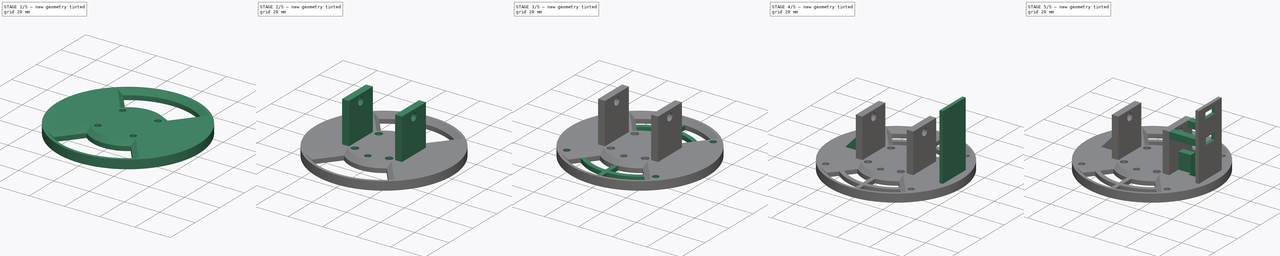
[diagram: build sequence overview — one tinted view per stage of 5, left to right]
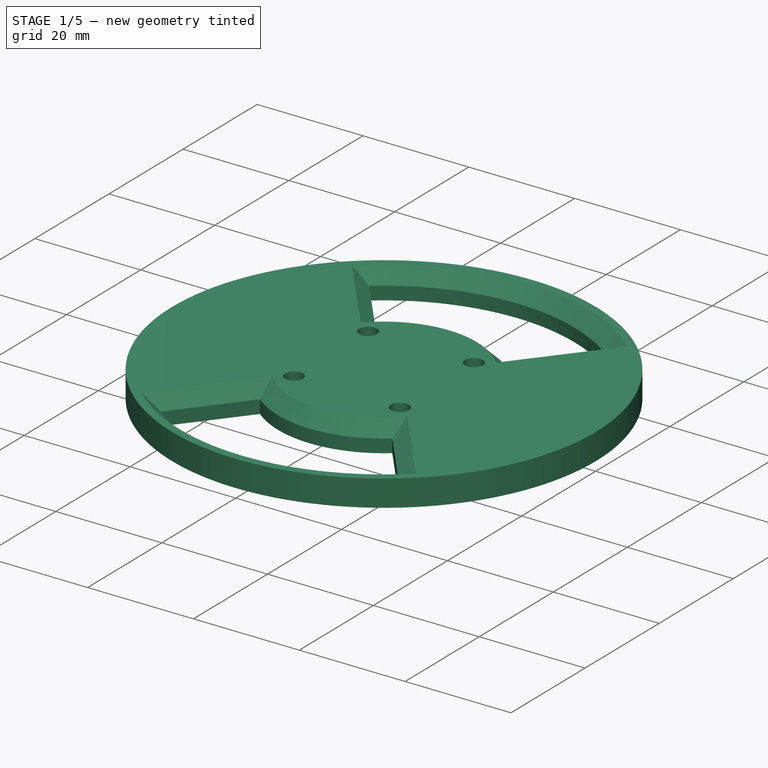
[diagram: stage 1 of 5 — iso view after this stage's code; geometry added in this stage tinted green]
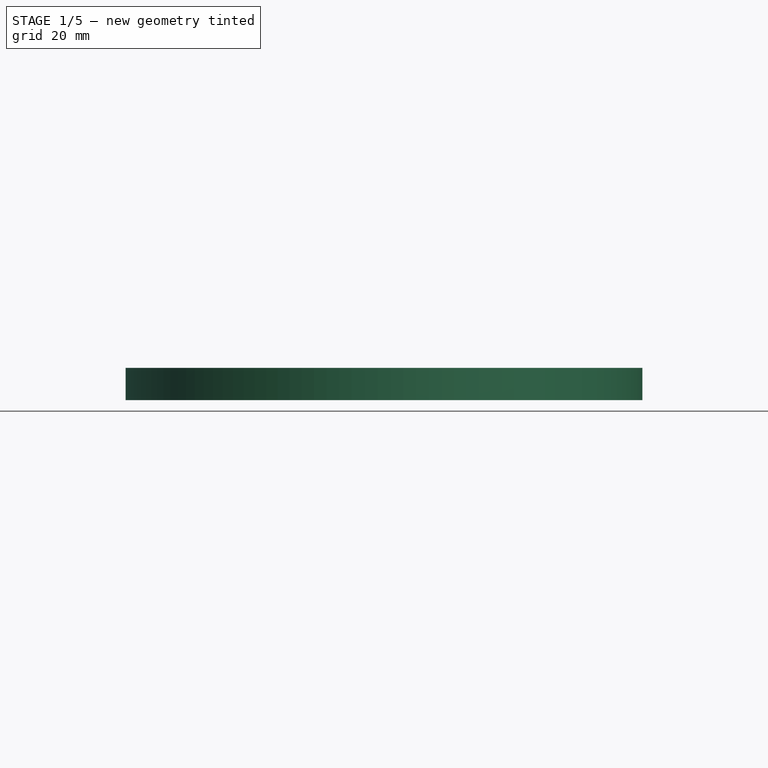
[diagram: stage 1 of 5 — front view after this stage's code; geometry added in this stage tinted green]
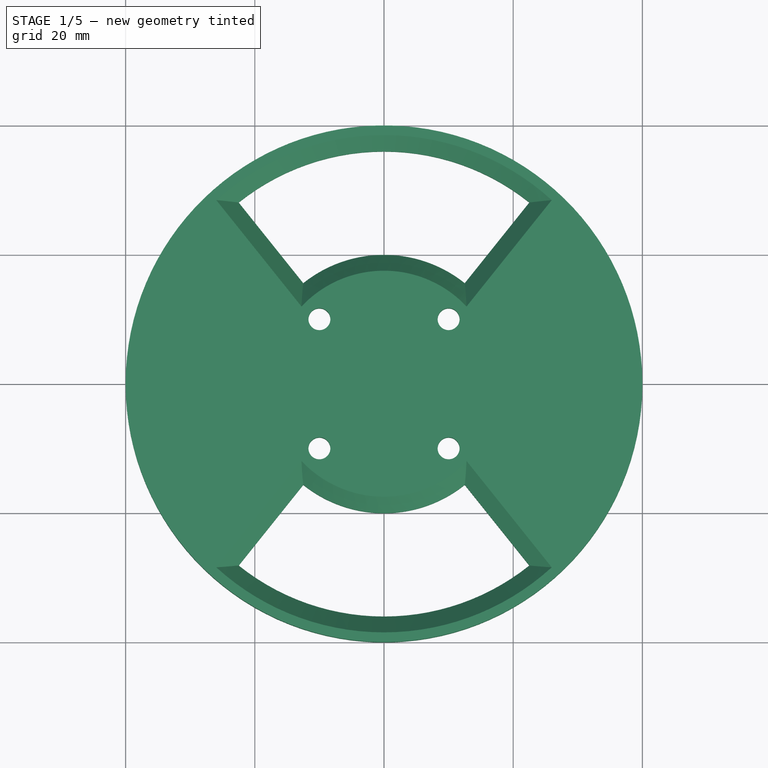
[diagram: stage 1 of 5 — top view after this stage's code; geometry added in this stage tinted green]
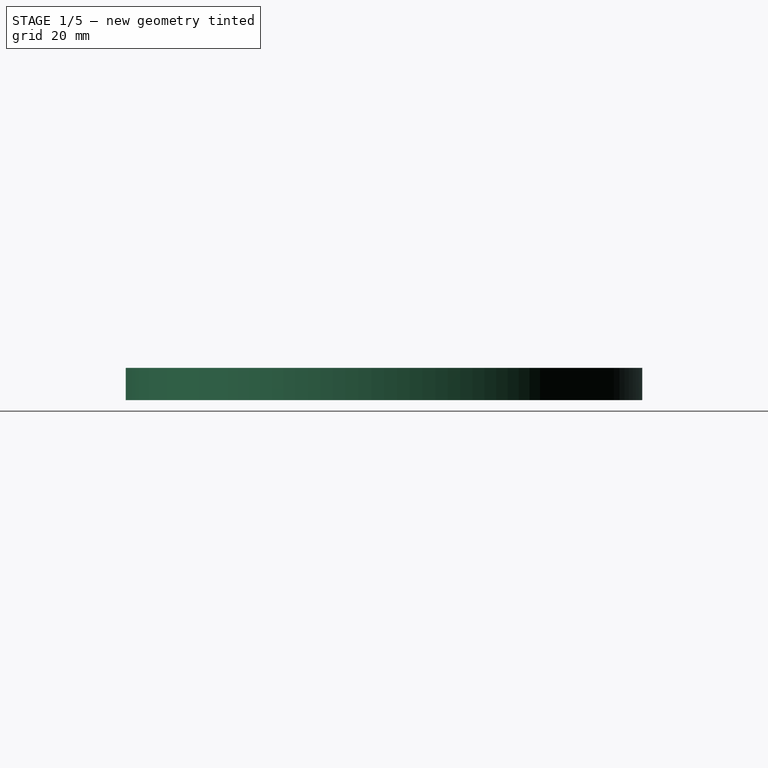
[diagram: stage 1 of 5 — right view after this stage's code; geometry added in this stage tinted green]
FCSTD DOCUMENT  (FreeCAD 0.16RUnknown)
Label: bottom
License: All rights reserved
LicenseURL: http://en.wikipedia.org/wiki/All_rights_reserved
objects: Sketcher::SketchObject×17, PartDesign::Pocket×10, PartDesign::Pad×7, PartDesign::Mirrored×3, PartDesign::Chamfer×1
note: 55 computed .brp shape members not serialized (recipe doc carries the construction recipe); baked Part::Feature solids carry a one-line shape summary decoded from their .brp

FEATURE [Sketcher::SketchObject] Sketch
  sketch-geometry (9):
    g0: Circle CenterX=0 CenterY=0 CenterZ=0 NormalX=0 NormalY=0 NormalZ=1 Radius=40
    g1: Circle CenterX=10 CenterY=10 CenterZ=0 NormalX=0 NormalY=0 NormalZ=1 Radius=1.7
    g2: Circle CenterX=-10 CenterY=10 CenterZ=0 NormalX=0 NormalY=0 NormalZ=1 Radius=1.7
    g3: Circle CenterX=-10 CenterY=-10 CenterZ=0 NormalX=0 NormalY=0 NormalZ=1 Radius=1.7
    g4: Circle CenterX=10 CenterY=-10 CenterZ=0 NormalX=0 NormalY=0 NormalZ=1 Radius=1.7
    g5: LineSegment [constr] StartX=-10 StartY=10 StartZ=0 EndX=10 EndY=10 EndZ=0
    g6: LineSegment [constr] StartX=10 StartY=10 StartZ=0 EndX=10 EndY=-10 EndZ=0
    g7: LineSegment [constr] StartX=10 StartY=-10 StartZ=0 EndX=-10 EndY=-10 EndZ=0
    g8: LineSegment [constr] StartX=-10 StartY=-10 StartZ=0 EndX=-10 EndY=10 EndZ=0
  constraints (22):
    c: Coincident(g0,g-1)
    c: Coincident(g5,g2)
    c: Coincident(g5,g1)
    c: Coincident(g5,g6)
    c: Coincident(g6,g4)
    c: Vertical(g6)
    c: Coincident(g6,g7)
    c: Coincident(g7,g8)
    c: Coincident(g8,g5)
    c: Coincident(g7,g3)
    c: Horizontal(g5)
    c: Horizontal(g7)
    c: Vertical(g8)
    c: DistanceX(g5,g5) = 20
    c: DistanceY(g6,g6) = 20
    c: Equal(g1,g4)
    c: Equal(g4,g3)
    c: Equal(g3,g2)
    c: Radius(g1) = 1.7
    c: Symmetric(g1,g2,g-2)
    c: Symmetric(g2,g3,g-1)
    c: Radius(g0) = 40
FEATURE [PartDesign::Pad] Pad
  Length = 5
  Length2 = 100
  Sketch = -> Sketch
  Type = 0
FEATURE [Sketcher::SketchObject] Sketch001
  Placement = pos=(0,0,0) rot=(1,0,0;3.14159rad)
  Support = -> Pad [Face6]
  sketch-geometry (4):
    g0: ArcOfCircle CenterX=0 CenterY=0 CenterZ=0 NormalX=0 NormalY=0 NormalZ=1 Radius=36 StartAngle=0.895665 EndAngle=2.24593
    g1: ArcOfCircle CenterX=0 CenterY=0 CenterZ=0 NormalX=0 NormalY=0 NormalZ=1 Radius=20 StartAngle=0.895665 EndAngle=2.24593
    g2: LineSegment StartX=-22.5 StartY=28.1025 StartZ=0 EndX=-12.5 EndY=15.6125 EndZ=0
    g3: LineSegment StartX=22.5 StartY=28.1025 StartZ=0 EndX=12.5 EndY=15.6125 EndZ=0
  constraints (12):
    c: Coincident(g0,g-1)
    c: Coincident(g1,g-1)
    c: Coincident(g2,g0)
    c: Coincident(g3,g0)
    c: Coincident(g3,g1)
    c: Perpendicular(g0,g3)
    c: Perpendicular(g0,g2)
    c: Coincident(g2,g1)
    c: Symmetric(g1,g1,g-2)
    c: Distance(g3) = 16
    c: Distance(g-1,g0) = 36
    c: DistanceX(g1,g1) = 25
FEATURE [PartDesign::Pocket] Pocket
  Length = 5
  Sketch = -> Sketch001
  Type = 1
FEATURE [PartDesign::Mirrored] Mirrored
  MirrorPlane = -> Sketch001 [H_Axis]
  Originals = -> [Pocket]
FEATURE [PartDesign::Chamfer] Chamfer
  Base = -> Mirrored [Edge21,Edge18,Edge19,Edge20,Edge22,Edge25,Edge23,Edge24]
  Size = 2.5
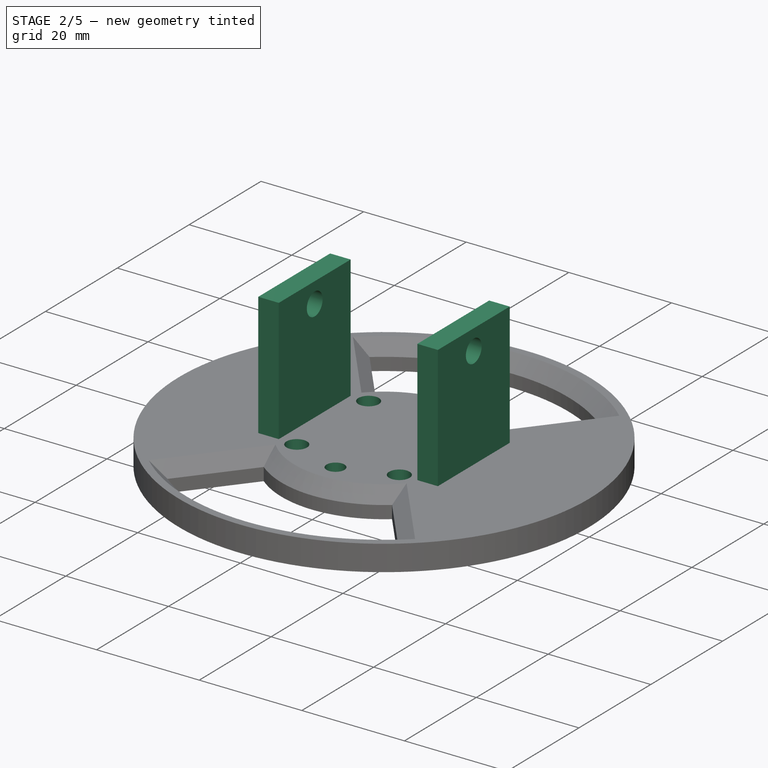
[diagram: stage 2 of 5 — iso view after this stage's code; geometry added in this stage tinted green]
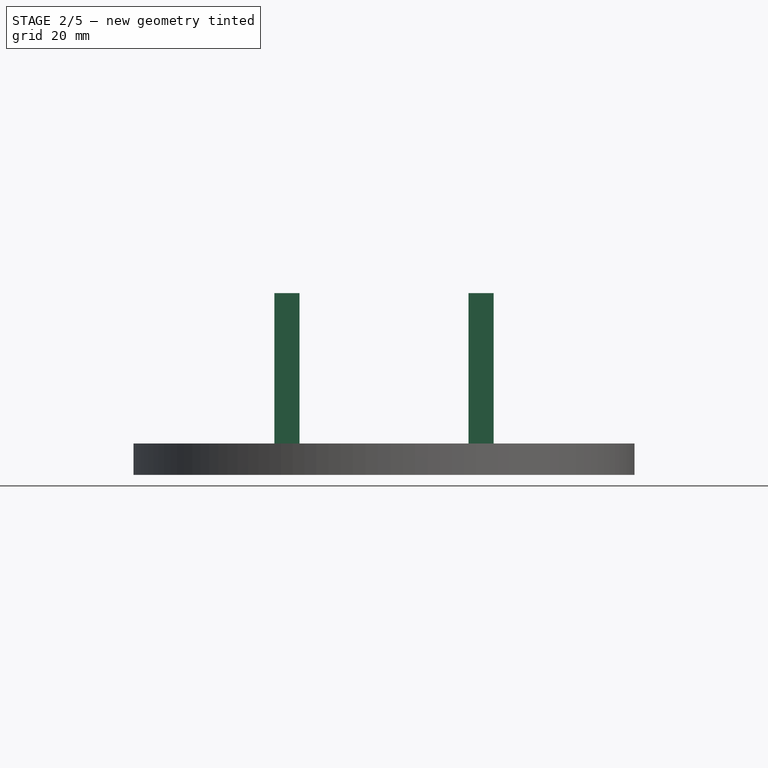
[diagram: stage 2 of 5 — front view after this stage's code; geometry added in this stage tinted green]
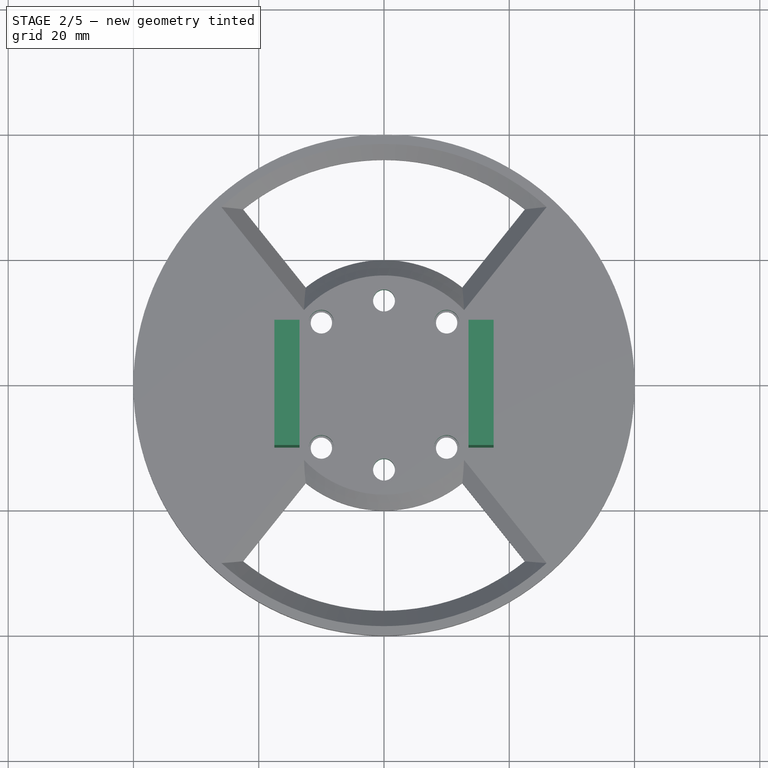
[diagram: stage 2 of 5 — top view after this stage's code; geometry added in this stage tinted green]
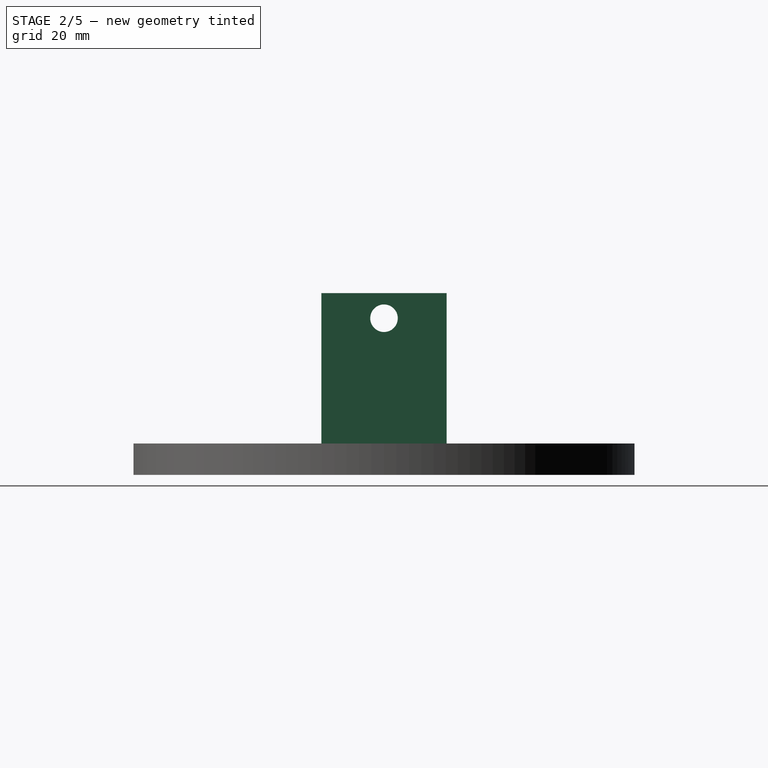
[diagram: stage 2 of 5 — right view after this stage's code; geometry added in this stage tinted green]
FEATURE [Sketcher::SketchObject] Sketch002
  Placement = pos=(0,0,5) rot=(0,0,1;0rad)
  Support = -> Chamfer [Face1]
  sketch-geometry (8):
    g0: LineSegment StartX=13.5 StartY=10 StartZ=0 EndX=17.5 EndY=10 EndZ=0
    g1: LineSegment StartX=17.5 StartY=10 StartZ=0 EndX=17.5 EndY=-10 EndZ=0
    g2: LineSegment StartX=17.5 StartY=-10 StartZ=0 EndX=13.5 EndY=-10 EndZ=0
    g3: LineSegment StartX=13.5 StartY=-10 StartZ=0 EndX=13.5 EndY=10 EndZ=0
    g4: LineSegment StartX=-17.5 StartY=10 StartZ=0 EndX=-13.5 EndY=10 EndZ=0
    g5: LineSegment StartX=-13.5 StartY=10 StartZ=0 EndX=-13.5 EndY=-10 EndZ=0
    g6: LineSegment StartX=-13.5 StartY=-10 StartZ=0 EndX=-17.5 EndY=-10 EndZ=0
    g7: LineSegment StartX=-17.5 StartY=-10 StartZ=0 EndX=-17.5 EndY=10 EndZ=0
  constraints (23):
    c: Coincident(g0,g1)
    c: Coincident(g1,g2)
    c: Coincident(g2,g3)
    c: Coincident(g3,g0)
    c: Horizontal(g0)
    c: Horizontal(g2)
    c: Vertical(g1)
    c: Vertical(g3)
    c: Coincident(g4,g5)
    c: Coincident(g5,g6)
    c: Coincident(g6,g7)
    c: Coincident(g7,g4)
    c: Horizontal(g4)
    c: Horizontal(g6)
    c: Vertical(g5)
    c: Vertical(g7)
    c: DistanceX(g4,g0) = 27
    c: DistanceX(g2,g2) = 4
    c: Symmetric(g0,g4,g-2)
    c: Equal(g6,g2)
    c: Equal(g5,g3)
    c: DistanceY(g7,g7) = 20
    c: Symmetric(g4,g5,g-1)
FEATURE [PartDesign::Pad] Pad001
  Length = 24
  Length2 = 100
  Sketch = -> Sketch002
  Type = 0
FEATURE [Sketcher::SketchObject] Sketch003
  ExternalGeometry = -> [Pad001]
  Placement = pos=(-17.5,0,0) rot=(0.57735,-0.57735,-0.57735;2.0944rad)
  Support = -> Pad001 [Face22]
  sketch-geometry (1):
    g0: Circle CenterX=0 CenterY=25 CenterZ=0 NormalX=0 NormalY=0 NormalZ=1 Radius=2.2
  constraints (3):
    c: PointOnObject(g0,g-2)
    c: Radius(g0) = 2.2
    c: DistanceY(g0,g-3) = 4
FEATURE [PartDesign::Pocket] Pocket001
  Length = 5
  Sketch = -> Sketch003
  Type = 1
FEATURE [Sketcher::SketchObject] Sketch004
  Placement = pos=(0,0,0) rot=(1,0,0;3.14159rad)
  Support = -> Pocket001 [Face2]
  sketch-geometry (2):
    g0: Circle CenterX=0 CenterY=13.5 CenterZ=0 NormalX=0 NormalY=0 NormalZ=1 Radius=1.75
    g1: Circle CenterX=0 CenterY=-13.5 CenterZ=0 NormalX=0 NormalY=0 NormalZ=1 Radius=1.75
  constraints (6):
    c: PointOnObject(g0,g-2)
    c: PointOnObject(g1,g-2)
    c: DistanceY(g1,g0) = 27
    c: Equal(g1,g0)
    c: Radius(g0) = 1.75
    c: Symmetric(g1,g0,g-1)
FEATURE [PartDesign::Pocket] Pocket002
  Length = 5
  Sketch = -> Sketch004
  Type = 1
FEATURE [Sketcher::SketchObject] Sketch005
  ExternalGeometry = -> [Pocket002]
  Placement = pos=(0,0,5) rot=(0,0,1;0rad)
  Support = -> Pocket002 [Face3]
  sketch-geometry (4):
    g0: Circle CenterX=-10 CenterY=10 CenterZ=0 NormalX=0 NormalY=0 NormalZ=1 Radius=2
    g1: Circle CenterX=10 CenterY=10 CenterZ=0 NormalX=0 NormalY=0 NormalZ=1 Radius=2
    g2: Circle CenterX=10 CenterY=-10 CenterZ=0 NormalX=0 NormalY=0 NormalZ=1 Radius=2
    g3: Circle CenterX=-10 CenterY=-10 CenterZ=0 NormalX=0 NormalY=0 NormalZ=1 Radius=2
  constraints (8):
    c: Coincident(g0,g-4)
    c: Coincident(g1,g-3)
    c: Coincident(g2,g-6)
    c: Coincident(g3,g-5)
    c: Equal(g3,g2)
    c: Equal(g2,g1)
    c: Equal(g1,g0)
    c: Radius(g1) = 2
FEATURE [PartDesign::Pocket] Pocket003
  Length = 4
  Sketch = -> Sketch005
  Type = 0
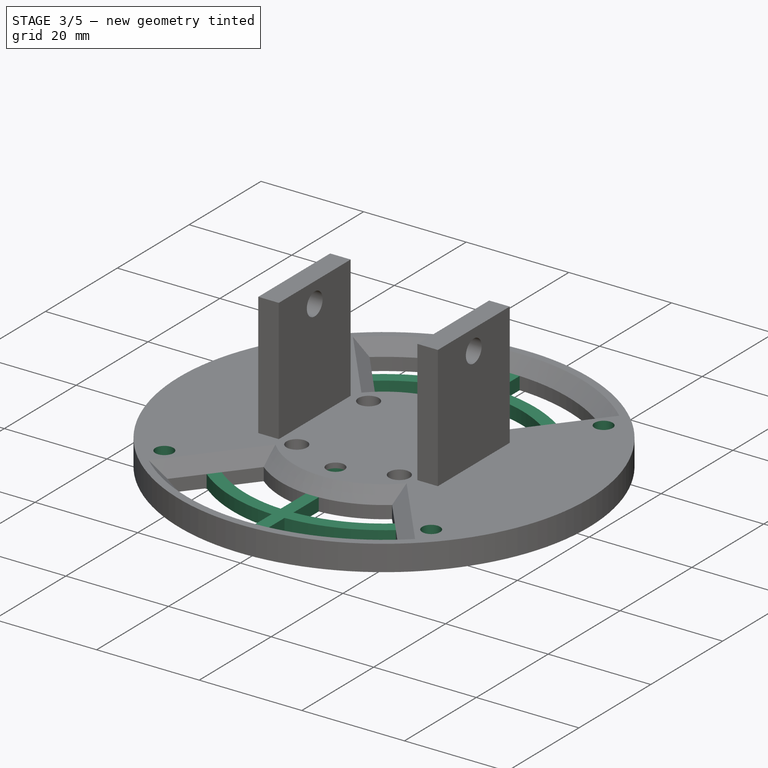
[diagram: stage 3 of 5 — iso view after this stage's code; geometry added in this stage tinted green]
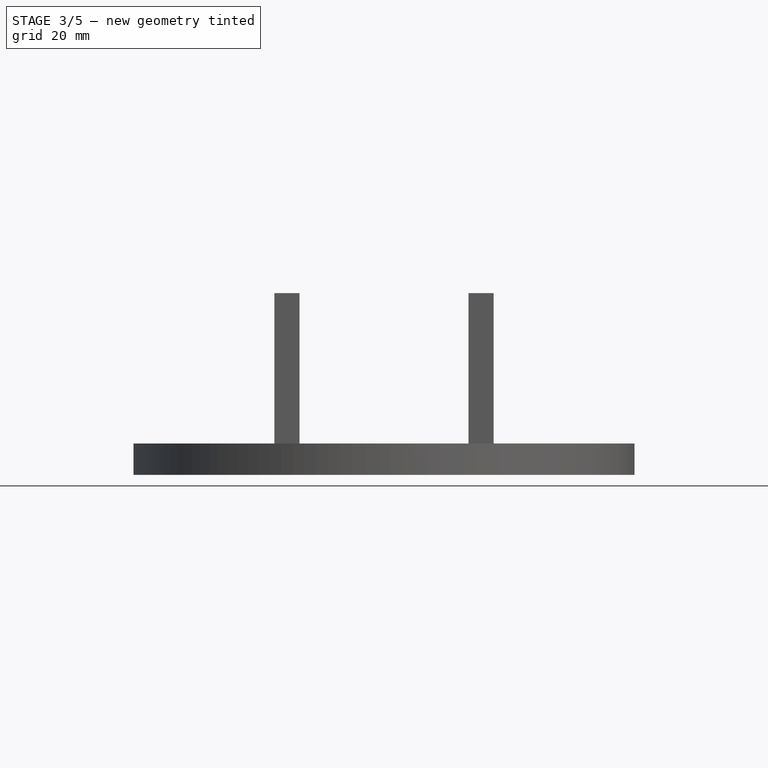
[diagram: stage 3 of 5 — front view after this stage's code; geometry added in this stage tinted green]
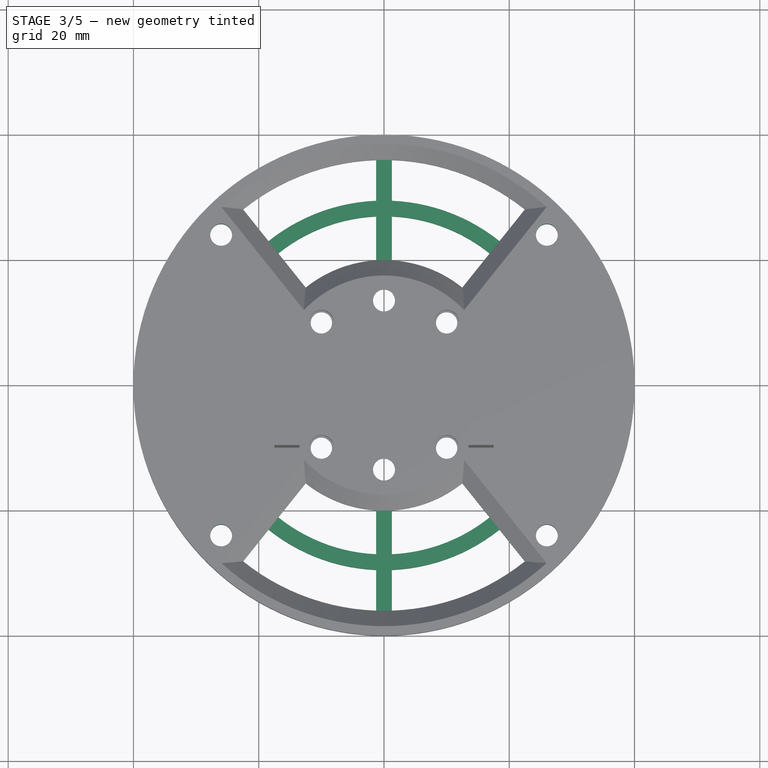
[diagram: stage 3 of 5 — top view after this stage's code; geometry added in this stage tinted green]
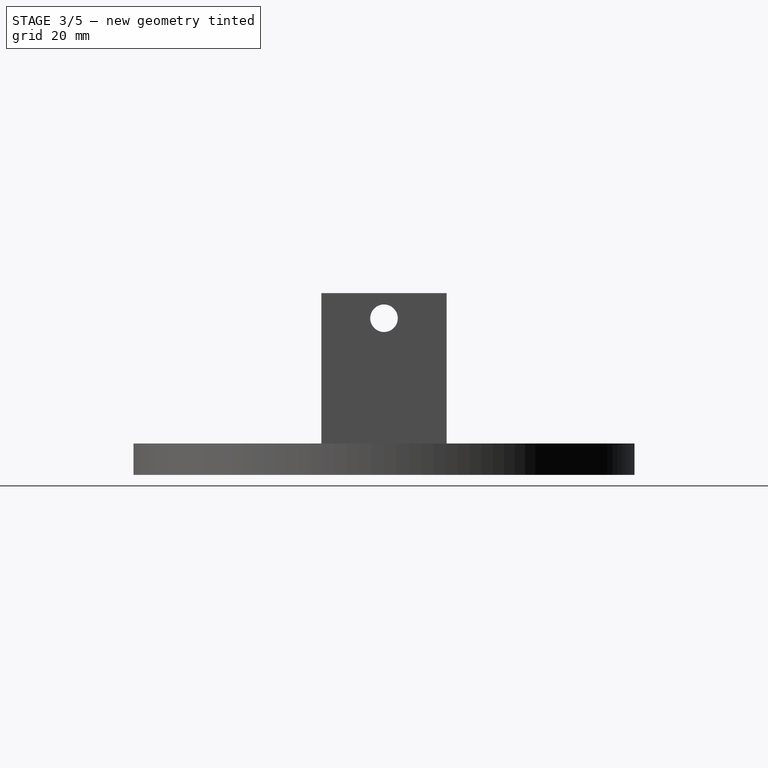
[diagram: stage 3 of 5 — right view after this stage's code; geometry added in this stage tinted green]
FEATURE [Sketcher::SketchObject] Sketch006
  ExternalGeometry = -> [Pocket003]
  Placement = pos=(0,0,0) rot=(1,0,0;3.14159rad)
  Support = -> Pocket003 [Face2]
  sketch-geometry (2):
    g0: Circle CenterX=0 CenterY=13.5 CenterZ=0 NormalX=0 NormalY=0 NormalZ=1 Radius=2
    g1: Circle CenterX=0 CenterY=-13.5 CenterZ=0 NormalX=0 NormalY=0 NormalZ=1 Radius=2
  constraints (4):
    c: Coincident(g0,g-3)
    c: Coincident(g1,g-4)
    c: Equal(g1,g0)
    c: Radius(g0) = 2
FEATURE [PartDesign::Pocket] Pocket004
  Length = 4
  Sketch = -> Sketch006
  Type = 0
FEATURE [Sketcher::SketchObject] Sketch007
  ExternalGeometry = -> [Pocket004]
  Placement = pos=(0,0,0) rot=(1,0,0;3.14159rad)
  Support = -> Pocket004 [Face2]
  sketch-geometry (12):
    g0: ArcOfCircle CenterX=0 CenterY=0 CenterZ=0 NormalX=0 NormalY=0 NormalZ=1 Radius=27 StartAngle=0.895665 EndAngle=1.52448
    g1: ArcOfCircle CenterX=0 CenterY=0 CenterZ=0 NormalX=0 NormalY=0 NormalZ=1 Radius=29.5 StartAngle=0.895665 EndAngle=1.52841
    g2: LineSegment StartX=-18.4375 StartY=23.0284 StartZ=0 EndX=-16.875 EndY=21.0769 EndZ=0
    g3: LineSegment StartX=18.4375 StartY=23.0284 StartZ=0 EndX=16.875 EndY=21.0769 EndZ=0
    g4: ArcOfCircle CenterX=0 CenterY=0 CenterZ=0 NormalX=0 NormalY=0 NormalZ=1 Radius=36 StartAngle=1.53607 EndAngle=1.60553
    g5: LineSegment StartX=-1.25 StartY=35.9783 StartZ=0 EndX=-1.25 EndY=29.4735 EndZ=0
    g6: LineSegment StartX=1.25 StartY=35.9783 StartZ=0 EndX=1.25 EndY=29.4735 EndZ=0
    g7: LineSegment StartX=-1.25 StartY=19.9609 StartZ=0 EndX=1.25 EndY=19.9609 EndZ=0
    g8: ArcOfCircle CenterX=0 CenterY=0 CenterZ=0 NormalX=0 NormalY=0 NormalZ=1 Radius=29.5 StartAngle=1.61318 EndAngle=2.24593
    g9: LineSegment StartX=-1.25 StartY=26.971 StartZ=0 EndX=-1.25 EndY=19.9609 EndZ=0
    g10: LineSegment StartX=1.25 StartY=26.971 StartZ=0 EndX=1.25 EndY=19.9609 EndZ=0
    g11: ArcOfCircle CenterX=0 CenterY=0 CenterZ=0 NormalX=0 NormalY=0 NormalZ=1 Radius=27 StartAngle=1.61711 EndAngle=2.24593
  constraints (34):
    c: Coincident(g0,g-1)
    c: PointOnObject(g11,g-6)
    c: PointOnObject(g0,g-5)
    c: Coincident(g1,g-1)
    c: PointOnObject(g8,g-6)
    c: PointOnObject(g1,g-5)
    c: Coincident(g2,g8)
    c: Coincident(g2,g11)
    c: Coincident(g3,g1)
    c: Coincident(g3,g0)
    c: Coincident(g4,g-1)
    c: PointOnObject(g4,g-3)
    c: Coincident(g5,g4)
    c: PointOnObject(g9,g-4)
    c: Coincident(g6,g4)
    c: PointOnObject(g10,g-4)
    c: Vertical(g6)
    c: Vertical(g5)
    c: Symmetric(g4,g4,g-2)
    c: DistanceX(g9,g10) = 2.5
    c: Coincident(g7,g9)
    c: Coincident(g7,g10)
    c: Distance(g0,g1) = 2.5
    c: Distance(g1,g-5) = 6.5
    c: Equal(g1,g8)
    c: Coincident(g1,g8)
    c: Coincident(g5,g8)
    c: Tangent(g5,g9)
    c: Coincident(g6,g1)
    c: Tangent(g6,g10)
    c: Equal(g0,g11)
    c: Coincident(g0,g10)
    c: Coincident(g11,g9)
    c: Coincident(g0,g11)
FEATURE [PartDesign::Pad] Pad002
  Length = 2.5
  Length2 = 100
  Reversed = true
  Sketch = -> Sketch007
  Type = 0
FEATURE [PartDesign::Mirrored] Mirrored001
  MirrorPlane = -> Sketch007 [H_Axis]
  Originals = -> [Pad002]
FEATURE [Sketcher::SketchObject] Sketch008
  Placement = pos=(0,0,0) rot=(1,0,0;3.14159rad)
  Support = -> Mirrored001 [Face2]
  sketch-geometry (3):
    g0: Circle CenterX=26 CenterY=24 CenterZ=0 NormalX=0 NormalY=0 NormalZ=1 Radius=1.75
    g1: Circle CenterX=26 CenterY=-24 CenterZ=0 NormalX=0 NormalY=0 NormalZ=1 Radius=1.75
    g2: LineSegment [constr] StartX=26 StartY=24 StartZ=0 EndX=26 EndY=-24 EndZ=0
  constraints (8):
    c: Symmetric(g0,g1,g-1)
    c: Coincident(g2,g1)
    c: Vertical(g2)
    c: Equal(g1,g0)
    c: Radius(g0) = 1.75
    c: Coincident(g2,g0)
    c: Distance(g-1,g2) = 26
    c: Distance(g2) = 48
FEATURE [PartDesign::Pocket] Pocket005
  Length = 5
  Sketch = -> Sketch008
  Type = 1
FEATURE [PartDesign::Mirrored] Mirrored002
  MirrorPlane = -> Sketch008 [V_Axis]
  Originals = -> [Pocket005]
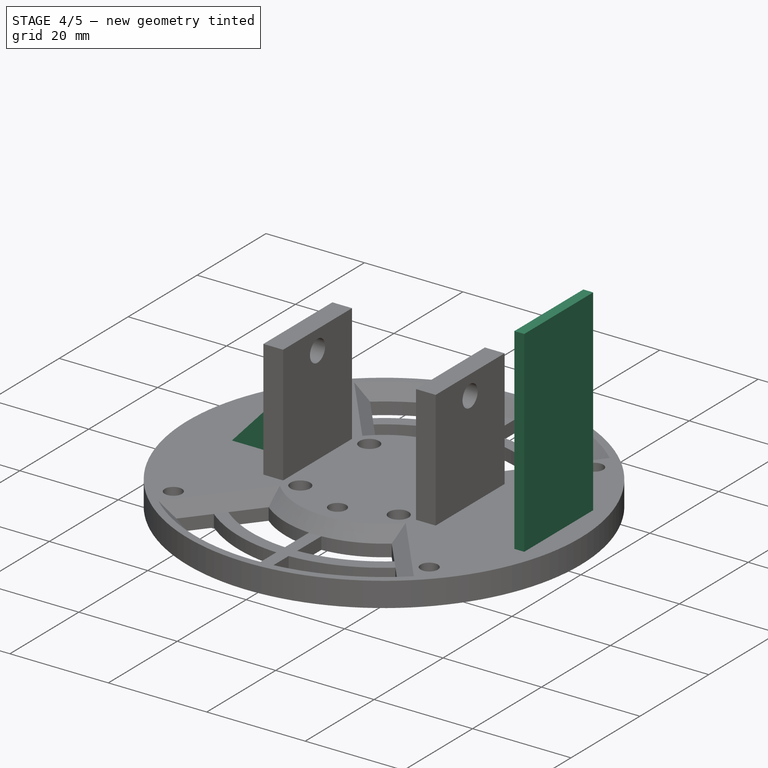
[diagram: stage 4 of 5 — iso view after this stage's code; geometry added in this stage tinted green]
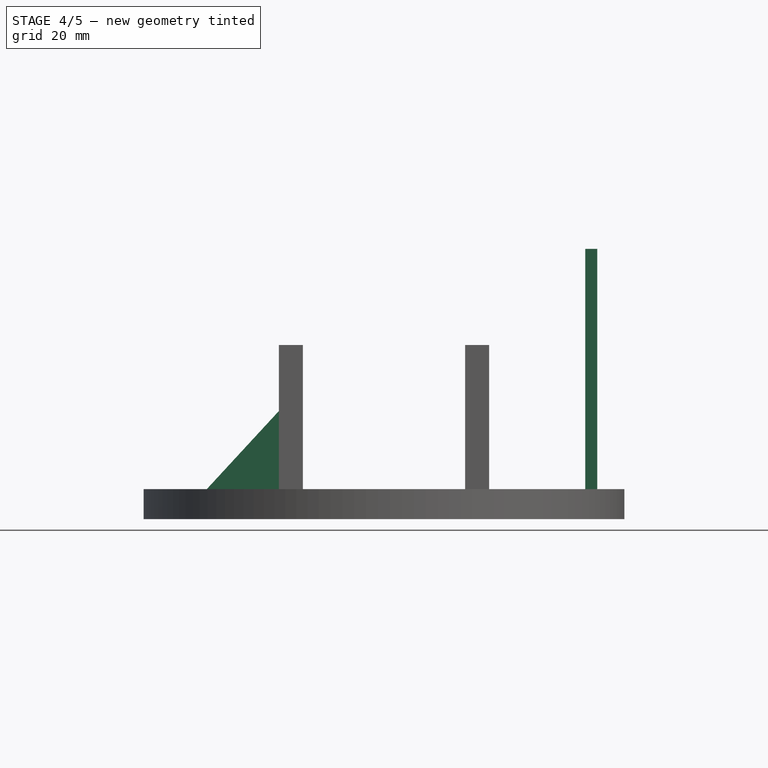
[diagram: stage 4 of 5 — front view after this stage's code; geometry added in this stage tinted green]
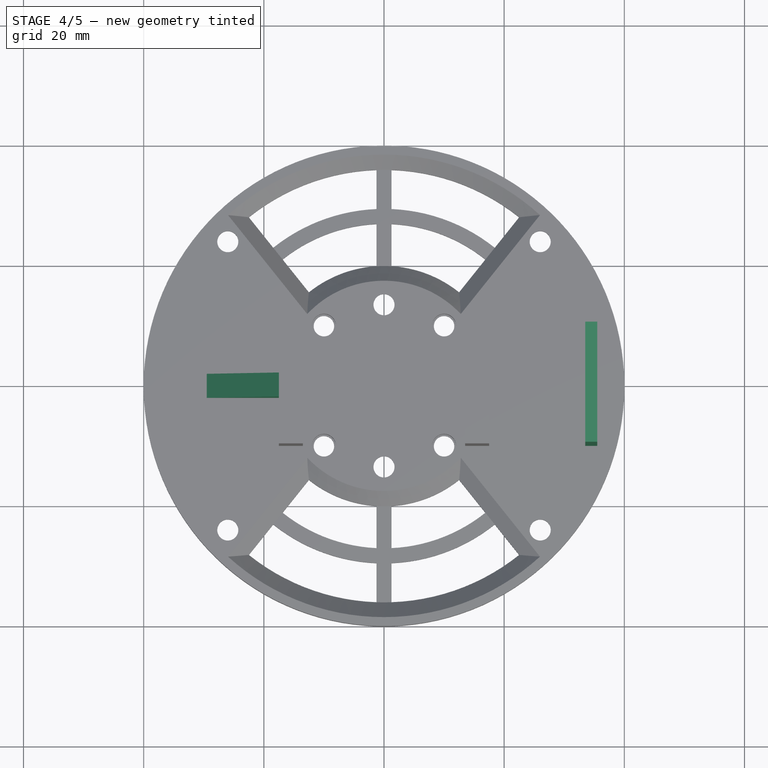
[diagram: stage 4 of 5 — top view after this stage's code; geometry added in this stage tinted green]
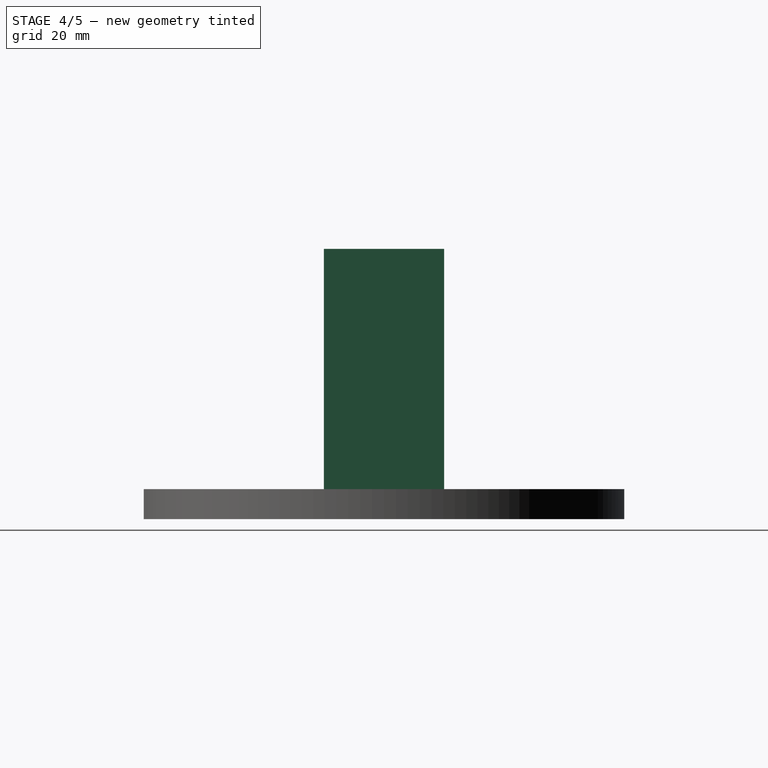
[diagram: stage 4 of 5 — right view after this stage's code; geometry added in this stage tinted green]
FEATURE [Sketcher::SketchObject] Sketch009
  ExternalGeometry = -> [Mirrored002]
  Placement = pos=(0,0,0) rot=(1,0,0;3.14159rad)
  Support = -> Mirrored002 [Face2]
  sketch-geometry (4):
    g0: Circle CenterX=-26 CenterY=24 CenterZ=0 NormalX=0 NormalY=0 NormalZ=1 Radius=2.85
    g1: Circle CenterX=-26 CenterY=-24 CenterZ=0 NormalX=0 NormalY=0 NormalZ=1 Radius=2.85
    g2: Circle CenterX=26 CenterY=-24 CenterZ=0 NormalX=0 NormalY=0 NormalZ=1 Radius=2.85
    g3: Circle CenterX=26 CenterY=24 CenterZ=0 NormalX=0 NormalY=0 NormalZ=1 Radius=2.85
  constraints (8):
    c: Coincident(g0,g-3)
    c: Coincident(g1,g-4)
    c: Coincident(g2,g-5)
    c: Coincident(g3,g-6)
    c: Equal(g3,g2)
    c: Equal(g2,g1)
    c: Equal(g1,g0)
    c: Radius(g3) = 2.85
FEATURE [PartDesign::Pocket] Pocket006
  Length = 3
  Sketch = -> Sketch009
  Type = 0
FEATURE [Sketcher::SketchObject] Sketch015
  ExternalGeometry = -> [Pocket006]
  Placement = pos=(-17.5,0,0) rot=(0.57735,-0.57735,-0.57735;2.0944rad)
  Support = -> Pocket006 [Face43]
  sketch-geometry (4):
    g0: LineSegment StartX=-2 StartY=18 StartZ=0 EndX=2 EndY=18 EndZ=0
    g1: LineSegment StartX=2 StartY=18 StartZ=0 EndX=2 EndY=5 EndZ=0
    g2: LineSegment StartX=2 StartY=5 StartZ=0 EndX=-2 EndY=5 EndZ=0
    g3: LineSegment StartX=-2 StartY=5 StartZ=0 EndX=-2 EndY=18 EndZ=0
  constraints (12):
    c: Coincident(g0,g1)
    c: Coincident(g1,g2)
    c: Coincident(g2,g3)
    c: Coincident(g3,g0)
    c: Horizontal(g0)
    c: Horizontal(g2)
    c: Vertical(g1)
    c: Vertical(g3)
    c: Symmetric(g1,g2,g-2)
    c: PointOnObject(g1,g-3)
    c: DistanceX(g0,g0) = 4
    c: DistanceY(g1,g1) = 13
FEATURE [PartDesign::Pad] Pad003
  Length = 12
  Length2 = 100
  Sketch = -> Sketch015
  Type = 0
FEATURE [Sketcher::SketchObject] Sketch016
  ExternalGeometry = -> [Pad003]
  Placement = pos=(0,2,0) rot=(0,0.707107,0.707107;3.14159rad)
  Support = -> Pad003 [Face42]
  sketch-geometry (3):
    g0: LineSegment StartX=17.5 StartY=18 StartZ=0 EndX=29.5 EndY=18 EndZ=0
    g1: LineSegment StartX=29.5 StartY=18 StartZ=0 EndX=29.5 EndY=5 EndZ=0
    g2: LineSegment StartX=29.5 StartY=5 StartZ=0 EndX=17.5 EndY=18 EndZ=0
  constraints (6):
    c: Coincident(g-3,g0)
    c: Coincident(g0,g-4)
    c: Coincident(g0,g1)
    c: Coincident(g1,g-4)
    c: Coincident(g1,g2)
    c: Coincident(g2,g0)
FEATURE [PartDesign::Pocket] Pocket007
  Length = 5
  Sketch = -> Sketch016
  Type = 2
FEATURE [Sketcher::SketchObject] Sketch017
  ExternalGeometry = -> [Pocket007]
  Placement = pos=(0,0,5) rot=(0,0,1;0rad)
  Support = -> Pocket007 [Face3]
  sketch-geometry (4):
    g0: LineSegment StartX=35.5 StartY=10 StartZ=0 EndX=33.5 EndY=10 EndZ=0
    g1: LineSegment StartX=33.5 StartY=10 StartZ=0 EndX=33.5 EndY=-10 EndZ=0
    g2: LineSegment StartX=33.5 StartY=-10 StartZ=0 EndX=35.5 EndY=-10 EndZ=0
    g3: LineSegment StartX=35.5 StartY=-10 StartZ=0 EndX=35.5 EndY=10 EndZ=0
  constraints (12):
    c: Coincident(g0,g1)
    c: Coincident(g1,g2)
    c: Coincident(g2,g3)
    c: Coincident(g3,g0)
    c: Horizontal(g0)
    c: Horizontal(g2)
    c: Vertical(g1)
    c: Vertical(g3)
    c: DistanceX(g0,g0) = 2
    c: Symmetric(g0,g2,g-1)
    c: DistanceY(g3,g3) = 20
    c: DistanceX(g-3,g1) = 16
FEATURE [PartDesign::Pad] Pad004
  Length = 40
  Length2 = 100
  Sketch = -> Sketch017
  Type = 0
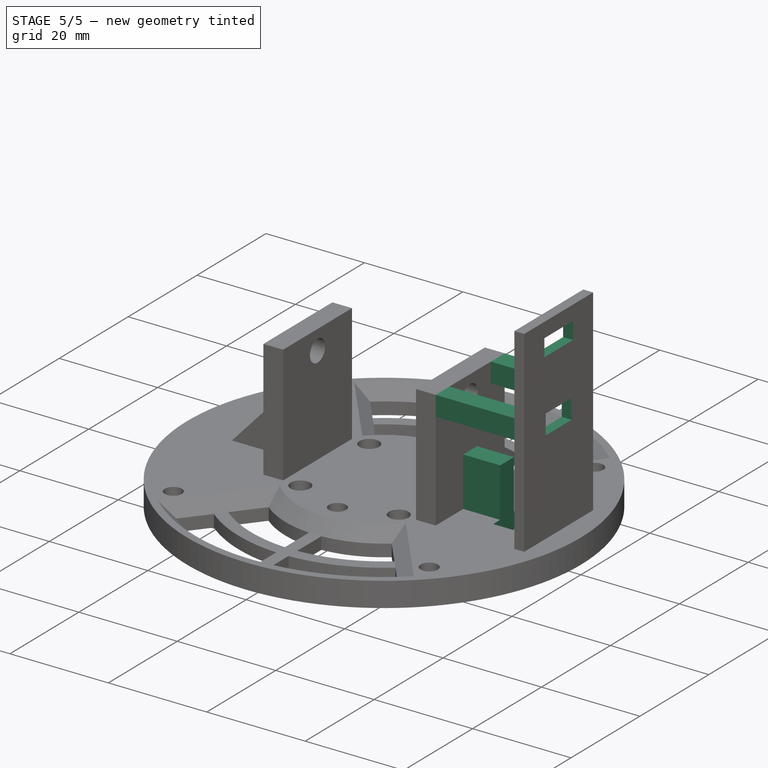
[diagram: stage 5 of 5 — iso view after this stage's code; geometry added in this stage tinted green]
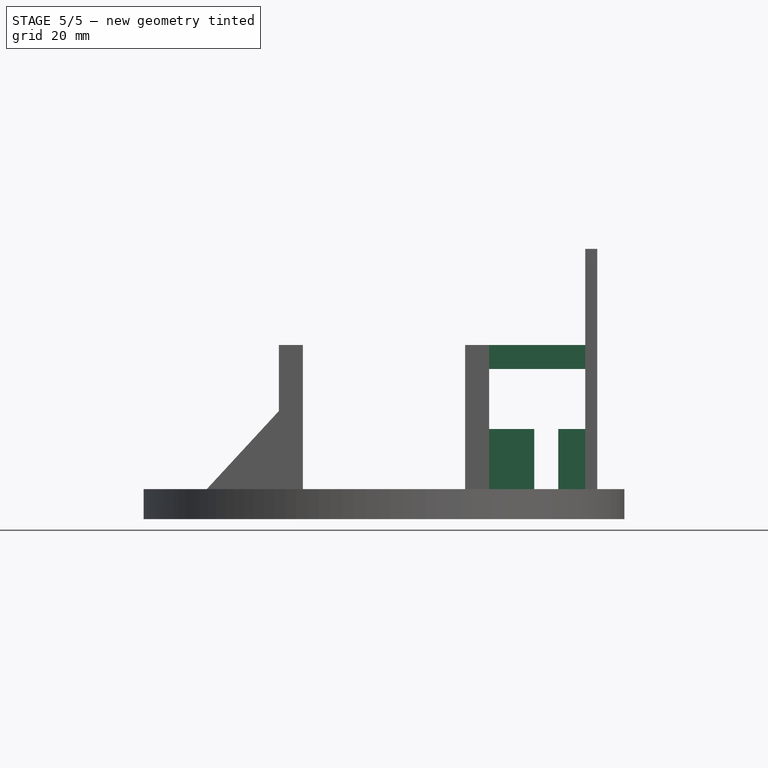
[diagram: stage 5 of 5 — front view after this stage's code; geometry added in this stage tinted green]
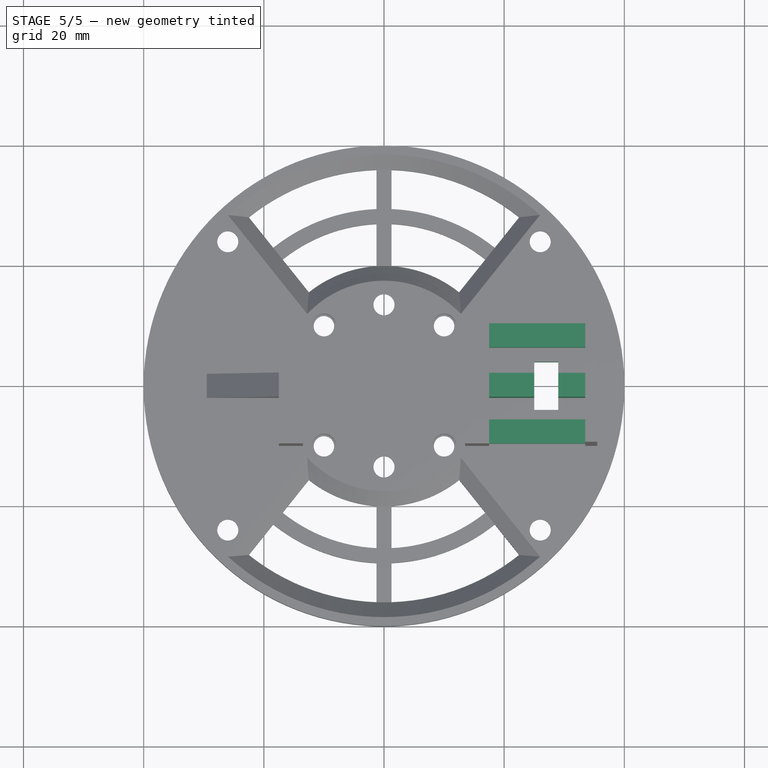
[diagram: stage 5 of 5 — top view after this stage's code; geometry added in this stage tinted green]
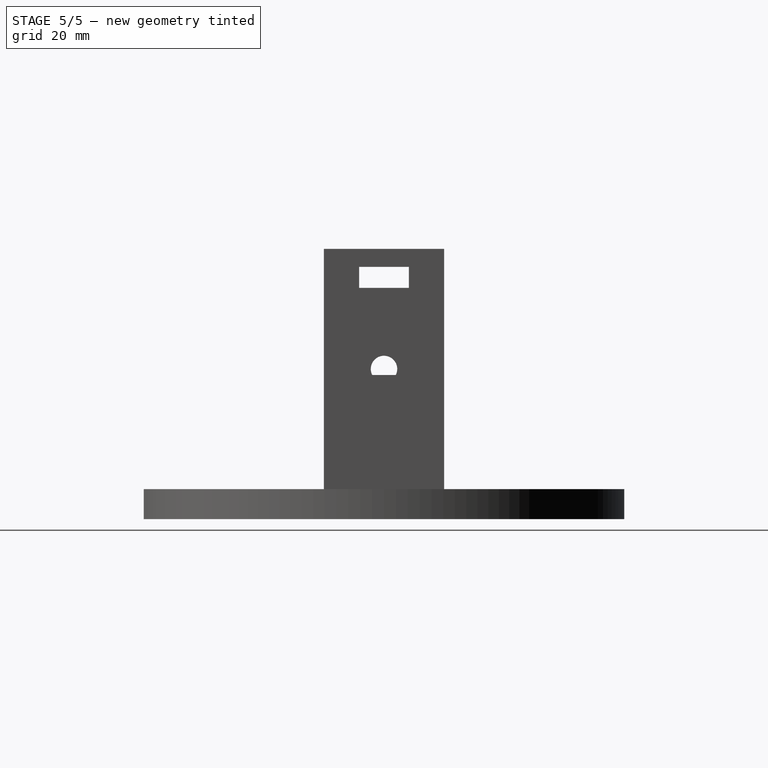
[diagram: stage 5 of 5 — right view after this stage's code; geometry added in this stage tinted green]
FEATURE [Sketcher::SketchObject] Sketch018
  ExternalGeometry = -> [Pad004]
  Placement = pos=(17.5,0,0) rot=(0.57735,0.57735,0.57735;2.0944rad)
  Support = -> Pad004 [Face34]
  sketch-geometry (4):
    g0: LineSegment StartX=-2 StartY=5 StartZ=0 EndX=2 EndY=5 EndZ=0
    g1: LineSegment StartX=2 StartY=5 StartZ=0 EndX=2 EndY=15 EndZ=0
    g2: LineSegment StartX=2 StartY=15 StartZ=0 EndX=-2 EndY=15 EndZ=0
    g3: LineSegment StartX=-2 StartY=15 StartZ=0 EndX=-2 EndY=5 EndZ=0
  constraints (12):
    c: Coincident(g0,g1)
    c: Coincident(g1,g2)
    c: Coincident(g2,g3)
    c: Coincident(g3,g0)
    c: Horizontal(g0)
    c: Horizontal(g2)
    c: Vertical(g1)
    c: Vertical(g3)
    c: PointOnObject(g0,g-3)
    c: DistanceX(g2,g2) = 4
    c: DistanceY(g1,g1) = 10
    c: Symmetric(g1,g2,g-2)
FEATURE [PartDesign::Pad] Pad005
  Length = 10
  Length2 = 100
  Sketch = -> Sketch018
  Type = 2
FEATURE [Sketcher::SketchObject] Sketch019
  ExternalGeometry = -> [Pad005]
  Placement = pos=(0,0,29) rot=(0,0,1;0rad)
  Support = -> Pad005 [Face71]
  sketch-geometry (8):
    g0: LineSegment StartX=17.5 StartY=-10 StartZ=0 EndX=33.5 EndY=-10 EndZ=0
    g1: LineSegment StartX=33.5 StartY=-10 StartZ=0 EndX=33.5 EndY=-6 EndZ=0
    g2: LineSegment StartX=33.5 StartY=-6 StartZ=0 EndX=17.5 EndY=-6 EndZ=0
    g3: LineSegment StartX=17.5 StartY=-6 StartZ=0 EndX=17.5 EndY=-10 EndZ=0
    g4: LineSegment StartX=17.5 StartY=10 StartZ=0 EndX=33.5 EndY=10 EndZ=0
    g5: LineSegment StartX=33.5 StartY=10 StartZ=0 EndX=33.5 EndY=6 EndZ=0
    g6: LineSegment StartX=33.5 StartY=6 StartZ=0 EndX=17.5 EndY=6 EndZ=0
    g7: LineSegment StartX=17.5 StartY=6 StartZ=0 EndX=17.5 EndY=10 EndZ=0
  constraints (22):
    c: Coincident(g0,g1)
    c: Coincident(g1,g2)
    c: Coincident(g2,g3)
    c: Coincident(g3,g0)
    c: Horizontal(g0)
    c: Horizontal(g2)
    c: Vertical(g1)
    c: Vertical(g3)
    c: Coincident(g0,g-4)
    c: PointOnObject(g1,g-3)
    c: Coincident(g4,g5)
    c: Coincident(g5,g6)
    c: Coincident(g6,g7)
    c: Coincident(g7,g4)
    c: Horizontal(g4)
    c: Horizontal(g6)
    c: Vertical(g5)
    c: Vertical(g7)
    c: Coincident(g4,g-4)
    c: PointOnObject(g5,g-3)
    c: DistanceY(g0,g2) = 4
    c: DistanceY(g6,g4) = 4
FEATURE [PartDesign::Pad] Pad006
  Length = 4
  Length2 = 100
  Reversed = true
  Sketch = -> Sketch019
  Type = 0
FEATURE [Sketcher::SketchObject] Sketch020
  ExternalGeometry = -> [Pad006]
  Placement = pos=(35.5,0,0) rot=(0.57735,0.57735,0.57735;2.0944rad)
  Support = -> Pad006 [Face5]
  sketch-geometry (8):
    g0: LineSegment StartX=-4.15 StartY=42 StartZ=0 EndX=4.15 EndY=42 EndZ=0
    g1: LineSegment StartX=4.15 StartY=42 StartZ=0 EndX=4.15 EndY=38.5 EndZ=0
    g2: LineSegment StartX=4.15 StartY=38.5 StartZ=0 EndX=-4.15 EndY=38.5 EndZ=0
    g3: LineSegment StartX=-4.15 StartY=38.5 StartZ=0 EndX=-4.15 EndY=42 EndZ=0
    g4: LineSegment StartX=-3.75 StartY=28 StartZ=0 EndX=3.75 EndY=28 EndZ=0
    g5: LineSegment StartX=3.75 StartY=28 StartZ=0 EndX=3.75 EndY=24 EndZ=0
    g6: LineSegment StartX=3.75 StartY=24 StartZ=0 EndX=-3.75 EndY=24 EndZ=0
    g7: LineSegment StartX=-3.75 StartY=24 StartZ=0 EndX=-3.75 EndY=28 EndZ=0
  constraints (24):
    c: Coincident(g0,g1)
    c: Coincident(g1,g2)
    c: Coincident(g2,g3)
    c: Coincident(g3,g0)
    c: Horizontal(g0)
    c: Horizontal(g2)
    c: Vertical(g1)
    c: Vertical(g3)
    c: Coincident(g4,g5)
    c: Coincident(g5,g6)
    c: Coincident(g6,g7)
    c: Coincident(g7,g4)
    c: Horizontal(g4)
    c: Horizontal(g6)
    c: Vertical(g5)
    c: Vertical(g7)
    c: Symmetric(g0,g0,g-2)
    c: Symmetric(g4,g4,g-2)
    c: DistanceX(g2,g2) = 8.3
    c: DistanceY(g1,g1) = 3.5
    c: DistanceY(g0,g-3) = 3
    c: DistanceX(g6,g6) = 7.5
    c: DistanceY(g5,g5) = 4
    c: DistanceY(g4,g1) = 10.5
FEATURE [PartDesign::Pocket] Pocket008
  Length = 5
  Sketch = -> Sketch020
  Type = 2
FEATURE [Sketcher::SketchObject] Sketch021
  Placement = pos=(0,0,15) rot=(0,0,1;0rad)
  Support = -> Pocket008 [Face10]
  sketch-geometry (4):
    g0: LineSegment StartX=25 StartY=4 StartZ=0 EndX=29 EndY=4 EndZ=0
    g1: LineSegment StartX=29 StartY=4 StartZ=0 EndX=29 EndY=-4 EndZ=0
    g2: LineSegment StartX=29 StartY=-4 StartZ=0 EndX=25 EndY=-4 EndZ=0
    g3: LineSegment StartX=25 StartY=-4 StartZ=0 EndX=25 EndY=4 EndZ=0
  constraints (12):
    c: Coincident(g0,g1)
    c: Coincident(g1,g2)
    c: Coincident(g2,g3)
    c: Coincident(g3,g0)
    c: Horizontal(g0)
    c: Horizontal(g2)
    c: Vertical(g1)
    c: Vertical(g3)
    c: DistanceX(g2,g2) = 4
    c: DistanceY(g1,g1) = 8
    c: Symmetric(g0,g1,g-1)
    c: DistanceX(g-1,g2) = 25
FEATURE [PartDesign::Pocket] Pocket009
  Length = 5
  Sketch = -> Sketch021
  Type = 1
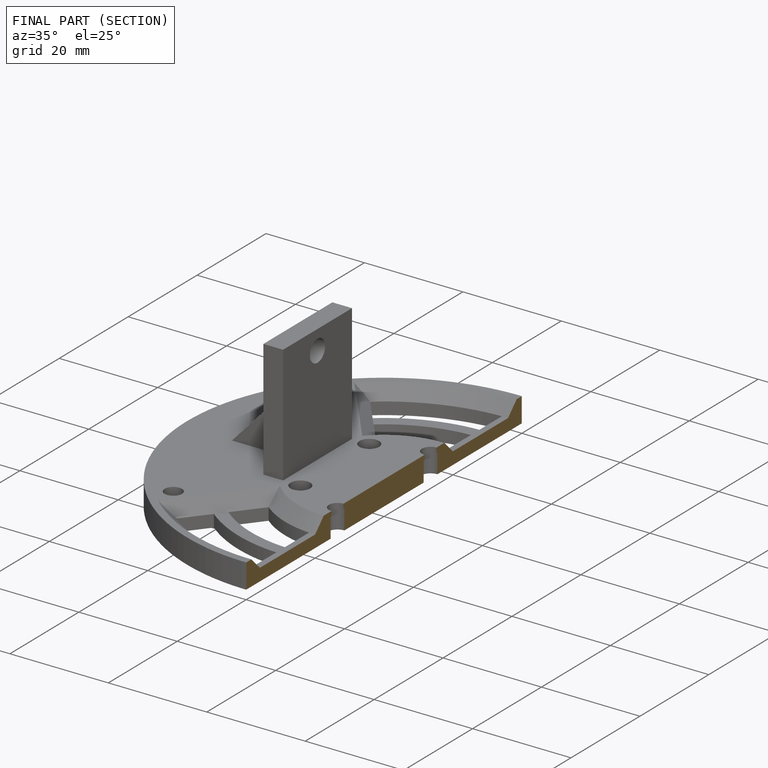
[diagram: finished part — half-section view (interior)]
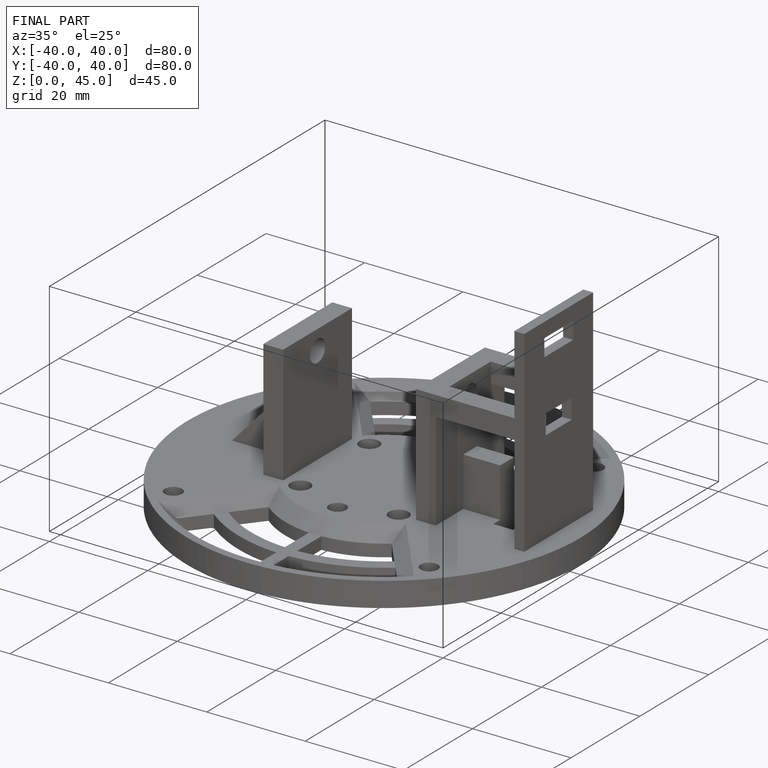
[diagram: finished part — iso view with bounding-box wireframe]
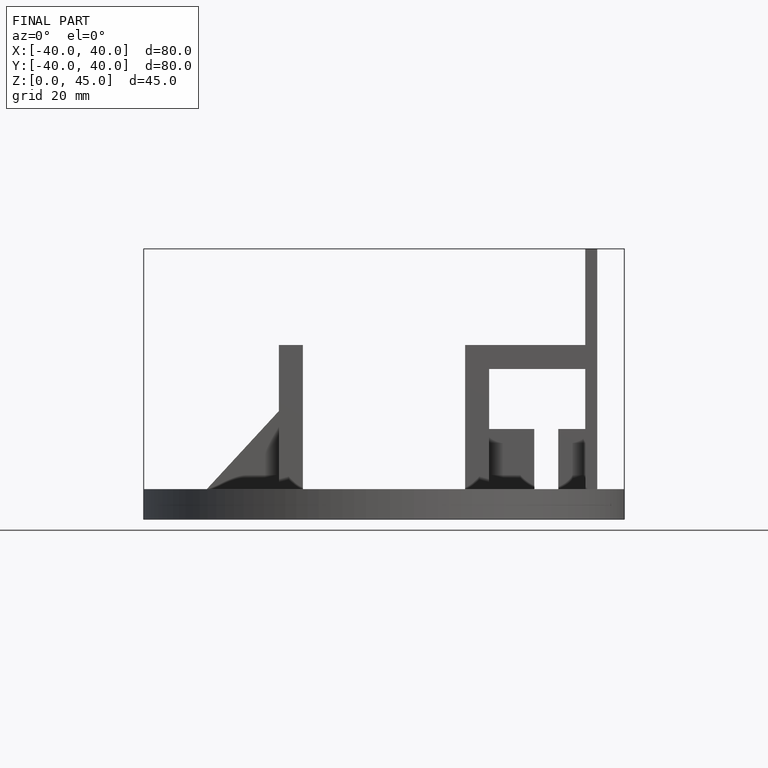
[diagram: finished part — front view with bounding-box wireframe]
